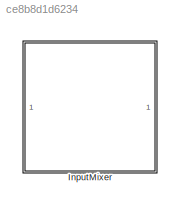
MODEL slx_ce8b8d1d6234
KIND library
CONFIG AbsTol = auto
CONFIG EnableMultiTasking = off
CONFIG FixedStep = auto
CONFIG MaxStep = auto
CONFIG MinStep = auto
CONFIG RelTol = 1e-3
CONFIG SampleTimeConstraint = Unconstrained
CONFIG SolverName = VariableStepAuto
CONFIG StartTime = 0.0
CONFIG StopTime = 10.0
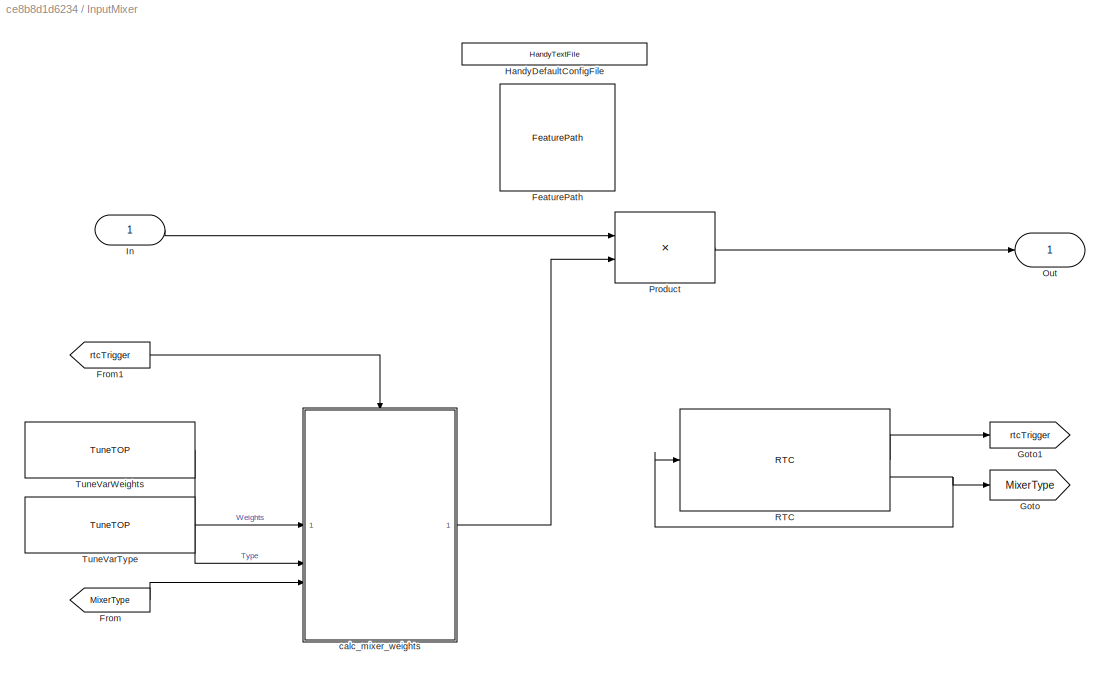
BLOCK [SubSystem] InputMixer
BLOCK [Reference] InputMixer/FeaturePath  REF=FeaturePath/FeaturePath
  SourceBlock = FeaturePath/FeaturePath
  SourceProductName = Bose Talaria
  SourceType = Talaria Feature Path
BLOCK [From] InputMixer/From
  GotoTag = MixerType
BLOCK [From] InputMixer/From1
  GotoTag = rtcTrigger
BLOCK [Goto] InputMixer/Goto
  GotoTag = MixerType
BLOCK [Goto] InputMixer/Goto1
  GotoTag = rtcTrigger
BLOCK [Reference] InputMixer/HandyDefaultConfigFile  REF=HandyTextFile/HandyTextFile
  SourceBlock = HandyTextFile/HandyTextFile
  SourceProductName = Bose Talaria
  SourceType = Talaria Handy Text File
BLOCK [Inport] InputMixer/In
BLOCK [Outport] InputMixer/Out
  VectorParamsAs1DForOutWhenUnconnected = off
BLOCK [Product] InputMixer/Product
  Multiplication = Matrix(*)
BLOCK [Reference] InputMixer/RTC  REF=RTC/RTC
  Description = 0: DEFER to Tuning to determine mixer type\n 1: (C) to (L, R)\n 2: (C, LFE) to (L, R)\n 3: (L, R) to (L, R)\n 4: (L, R, C) to (L, R)\n 5: (L, R, LFE) to (L, R)\n 6: (L, R, C, LFE) to (L, R)\n 7: (L, R, Ls) to (L, R, Ls, Rs)\n 8: (L, R, Ls, Rs) to (L, R, Ls, Rs)\n 9: (L, R, Ls, Rs, Lrs) to (L, R, Ls, Rs)\n 10: (L, R, Ls, Rs, Lrs, Rrs) to (L, R, Ls, Rs) \n\nTuning default might be 8 (depends on tuning of course...<+1ch>
  NameLocation = top
  SourceBlock = RTC/RTC
  SourceProductName = Bose Talaria
  SourceType = Talaria RTC Receive
BLOCK [Reference] InputMixer/TuneVarType  REF=TuneVar/TuneTOP
  SourceBlock = TuneVar/TuneTOP
  SourceProductName = Bose Talaria
  SourceType = Talaria Trivial Tune TOP
BLOCK [Reference] InputMixer/TuneVarWeights  REF=TuneVar/TuneTOP
  SourceBlock = TuneVar/TuneTOP
  SourceProductName = Bose Talaria
  SourceType = Talaria Trivial Tune TOP
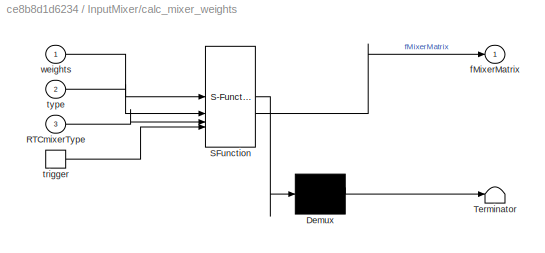
BLOCK [SubSystem] InputMixer/calc_mixer_weights
  ErrorFcn = Stateflow.Translate.translate
  PermitHierarchicalResolution = ExplicitOnly
  SFBlockType = MATLAB Function
  TreatAsAtomicUnit = on
BLOCK [Demux] InputMixer/calc_mixer_weights/ Demux 
  Outputs = 1
BLOCK [S-Function] InputMixer/calc_mixer_weights/ SFunction 
  EnableBusSupport = off
  FunctionName = sf_sfun
  Parameters = MaskNumInputChans,MaskNumOutputChans
  PortCounts = [4 2]
  SFcnIsStateOwnerBlock = off
  SFunctionDeploymentMode = off
  Tag = Stateflow S-Function 2
BLOCK [Terminator] InputMixer/calc_mixer_weights/ Terminator 
BLOCK [Inport] InputMixer/calc_mixer_weights/RTCmixerType
  Port = 3
BLOCK [Outport] InputMixer/calc_mixer_weights/fMixerMatrix
BLOCK [TriggerPort] InputMixer/calc_mixer_weights/trigger
  ShowOutputPort = on
  StatesWhenEnabling = held
  TriggerType = function-call
  VariantControl = (inherit)
BLOCK [Inport] InputMixer/calc_mixer_weights/type
  Port = 2
BLOCK [Inport] InputMixer/calc_mixer_weights/weights
LINE InputMixer/From1:1 -> InputMixer/calc_mixer_weights:trigger
LINE InputMixer/From:1 -> InputMixer/calc_mixer_weights:3
LINE InputMixer/In:1 -> InputMixer/Product:1
LINE InputMixer/Product:1 -> InputMixer/Out:1
LINE InputMixer/RTC:1 -> InputMixer/Goto1:1
NET InputMixer/RTC:2 -> InputMixer/Goto:1, InputMixer/RTC:1
LINE InputMixer/TuneVarType:1 -> InputMixer/calc_mixer_weights:2
LINE InputMixer/TuneVarWeights:1 -> InputMixer/calc_mixer_weights:1
LINE InputMixer/calc_mixer_weights:1 -> InputMixer/Product:2
note: NET lines group one-source signal fan-out (src -> all destinations, sorted); 1:1 wires keep LINE
CHART InputMixer/calc_mixer_weights states=1 transitions=1
  STATE_LABEL 'eML_blk_kernel()'
  STATE_LABEL 'SCRIPT:\nfunction fMixerMatrix = fcn(weights, type, RTCmixerType, MaskNumInputChans, MaskNumOutputChans)\n\n%     DESCRIPTION: The matrix "weights" describes 10 different types of\n%     mixer weights that can be applied to an incoming audio signal. Each\n%     type will mix an incoming signal differently, depending on the\n%     associated weights. For instance, in the case of Type 8, we see a\n%     va...<+3608ch>'
CHART  states=0 transitions=0
